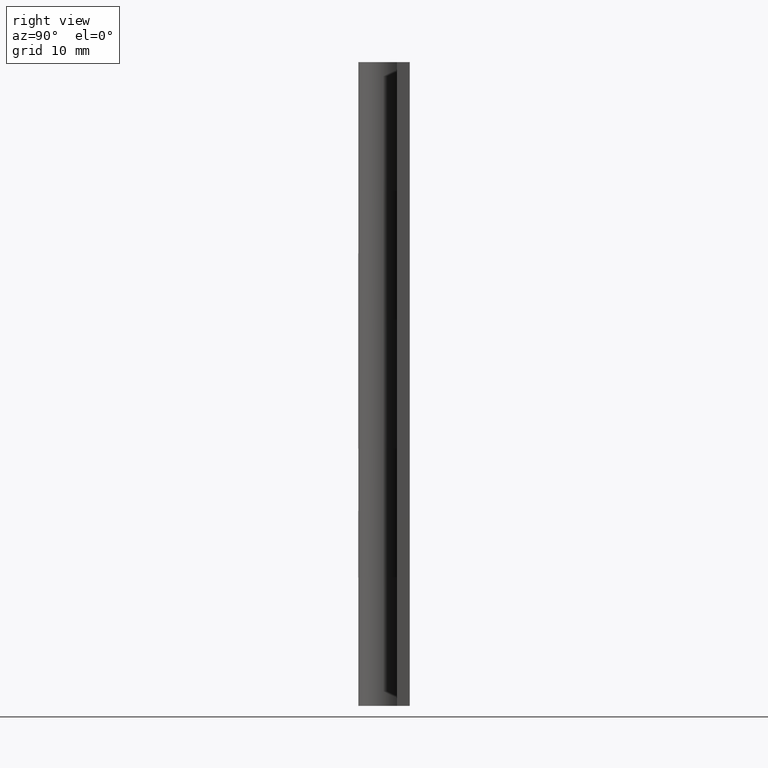
[diagram: clean part render]
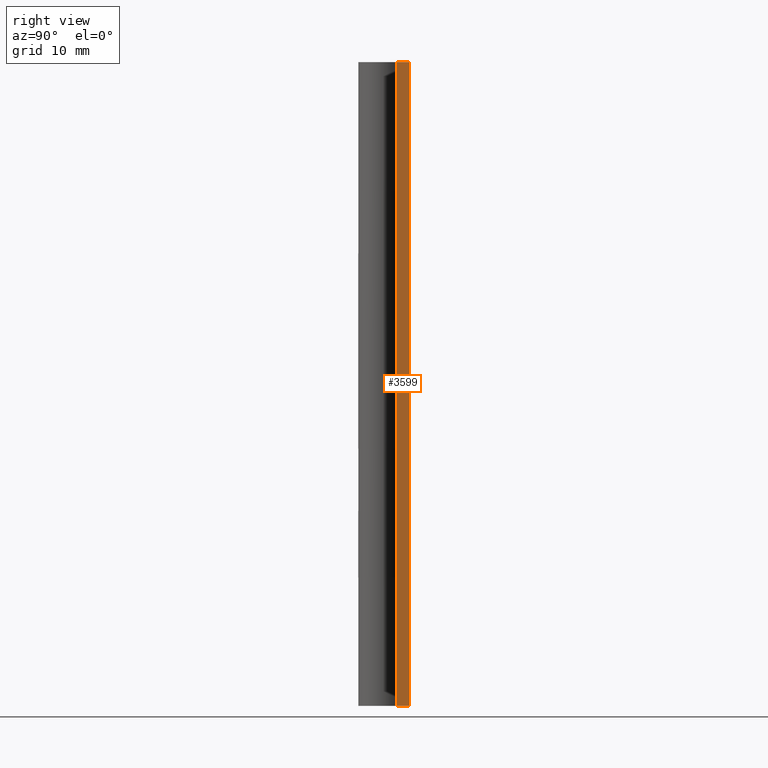
[diagram: same view with one face highlighted and labeled with its STEP entity id]
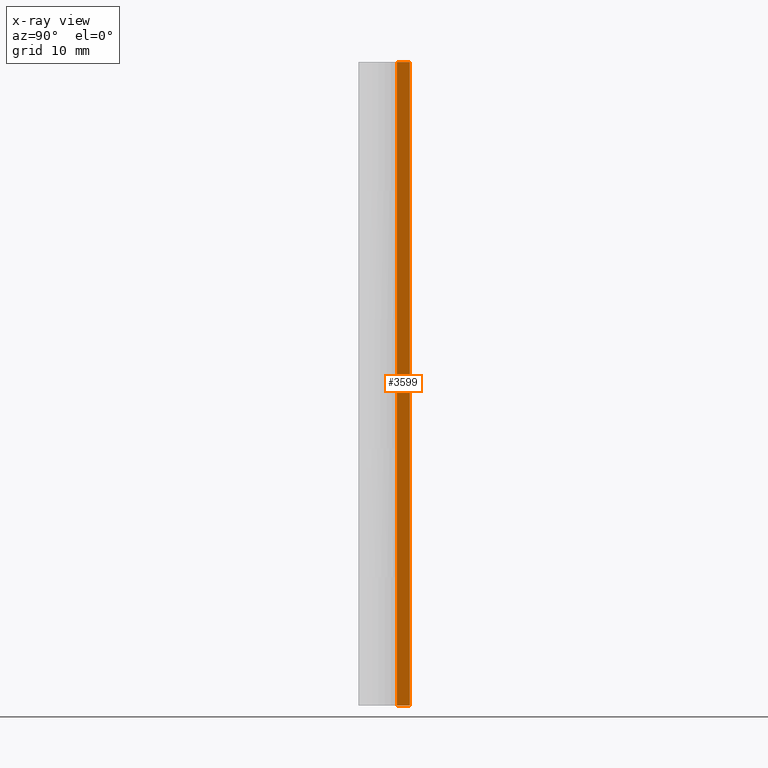
[diagram: x-ray of the same camera — body ghosted, the highlighted face saturated]
A machine part, right view. The second image highlights one B-rep face of the part: STEP entity #3599.
The next image is the same camera in x-ray: the body ghosted, the highlighted face saturated — about 0% of this face is hidden behind the body in this view.
In plain terms, the highlighted face is a freeform B-spline surface patch.
Its self-contained STEP definition (entity closure, byte-faithful):
#3480=CARTESIAN_POINT('',(20.0,3.0,0.0));
#3481=VERTEX_POINT('',#3480);
#3487=CARTESIAN_POINT('',(20.0,1.500000000000000,0.0));
#3488=VERTEX_POINT('',#3487);
#3489=CARTESIAN_POINT('',(20.0,1.500000000000000,0.0));
#3490=CARTESIAN_POINT('',(20.0,3.0,0.0));
#3491=QUASI_UNIFORM_CURVE('',1,(#3489,#3490),.UNSPECIFIED.,.F.,.U.);
#3492=EDGE_CURVE('',#3488,#3481,#3491,.T.);
#3530=CARTESIAN_POINT('',(20.0,1.500000000000000,75.0));
#3531=VERTEX_POINT('',#3530);
#3537=CARTESIAN_POINT('',(20.0,3.0,75.0));
#3538=VERTEX_POINT('',#3537);
#3539=CARTESIAN_POINT('',(20.0,1.500000000000000,75.0));
#3540=CARTESIAN_POINT('',(20.0,3.0,75.0));
#3541=QUASI_UNIFORM_CURVE('',1,(#3539,#3540),.UNSPECIFIED.,.F.,.U.);
#3542=EDGE_CURVE('',#3531,#3538,#3541,.T.);
#3580=CARTESIAN_POINT('',(20.0,1.425075002907291,-3.746249854635448));
#3581=CARTESIAN_POINT('',(20.0,1.425075002907291,78.746251866292212));
#3582=CARTESIAN_POINT('',(20.0,3.074925037325845,-3.746249854635448));
#3583=CARTESIAN_POINT('',(20.0,3.074925037325845,78.746251866292212));
#3584=B_SPLINE_SURFACE_WITH_KNOTS('',1,1,((#3580,#3582),(#3581,#3583)),.UNSPECIFIED.,.F.,.F.,.U.,(2,2),(2,2),(0.0,82.492501720927663),(0.041708334948495,0.958291687403247),.UNSPECIFIED.);
#3585=ORIENTED_EDGE('',*,*,#3492,.T.);
#3586=CARTESIAN_POINT('',(20.0,3.0,75.0));
#3587=CARTESIAN_POINT('',(20.0,3.0,0.0));
#3588=QUASI_UNIFORM_CURVE('',1,(#3586,#3587),.UNSPECIFIED.,.F.,.U.);
#3589=EDGE_CURVE('',#3538,#3481,#3588,.T.);
#3590=ORIENTED_EDGE('',*,*,#3589,.F.);
#3591=ORIENTED_EDGE('',*,*,#3542,.F.);
#3592=CARTESIAN_POINT('',(20.0,1.500000000000000,75.0));
#3593=CARTESIAN_POINT('',(20.0,1.500000000000000,0.0));
#3594=QUASI_UNIFORM_CURVE('',1,(#3592,#3593),.UNSPECIFIED.,.F.,.U.);
#3595=EDGE_CURVE('',#3531,#3488,#3594,.T.);
#3596=ORIENTED_EDGE('',*,*,#3595,.T.);
#3597=EDGE_LOOP('',(#3585,#3590,#3591,#3596));
#3598=FACE_OUTER_BOUND('',#3597,.T.);
#3599=ADVANCED_FACE('',(#3598),#3584,.F.);